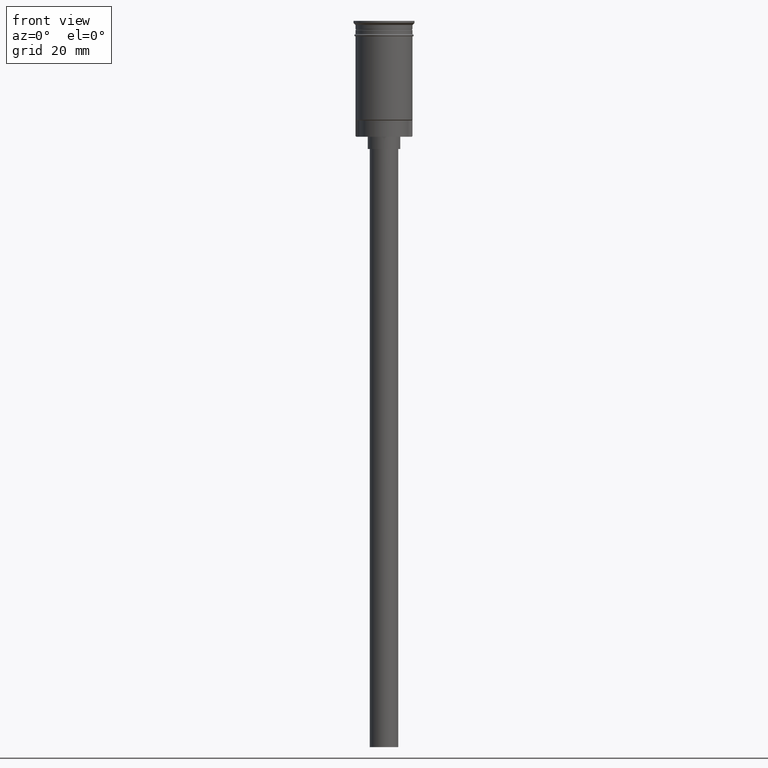
[diagram: clean part render]
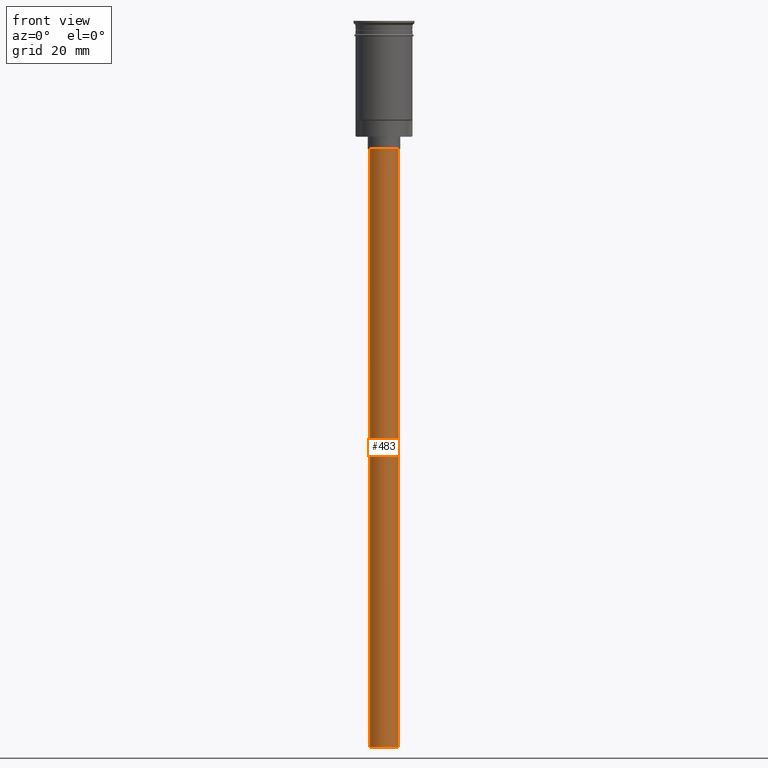
[diagram: same view with one face highlighted and labeled with its STEP entity id]
A machine part, front view. The second image highlights one B-rep face of the part: STEP entity #483.
In plain terms, the highlighted cylindrical surface (edge-blend (fillet) strip) has radius 3.5 mm, axis along (-0, -0, 1).
Its self-contained STEP definition (entity closure, byte-faithful):
#4 = EDGE_LOOP ( 'NONE', ( #576, #382, #1413, #651 ) ) ;
#30 = LINE ( 'NONE', #1141, #63 ) ;
#63 = VECTOR ( 'NONE', #903, 1000.000000000000000 ) ;
#123 = VERTEX_POINT ( 'NONE', #514 ) ;
#230 = EDGE_CURVE ( 'NONE', #123, #631, #30, .T. ) ;
#342 = CIRCLE ( 'NONE', #1262, 3.500000000000000444 ) ;
#379 = DIRECTION ( 'NONE',  ( -1.000000000000000000, 0.000000000000000000, 0.000000000000000000 ) ) ;
#382 = ORIENTED_EDGE ( 'NONE', *, *, #464, .F. ) ;
#463 = CARTESIAN_POINT ( 'NONE',  ( -3.500000000000000444, 4.286263797015737088E-16, -31.50000000000000000 ) ) ;
#464 = EDGE_CURVE ( 'NONE', #123, #1436, #342, .T. ) ;
#483 = ADVANCED_FACE ( 'NONE', ( #1337 ), #578, .T. ) ;
#514 = CARTESIAN_POINT ( 'NONE',  ( 3.500000000000000444, 0.000000000000000000, -178.5000000000000000 ) ) ;
#531 = VECTOR ( 'NONE', #532, 1000.000000000000000 ) ;
#532 = DIRECTION ( 'NONE',  ( -0.000000000000000000, -0.000000000000000000, 1.000000000000000000 ) ) ;
#576 = ORIENTED_EDGE ( 'NONE', *, *, #1023, .F. ) ;
#578 = CYLINDRICAL_SURFACE ( 'NONE', #1336, 3.500000000000000444 ) ;
#631 = VERTEX_POINT ( 'NONE', #1241 ) ;
#651 = ORIENTED_EDGE ( 'NONE', *, *, #1286, .T. ) ;
#693 = DIRECTION ( 'NONE',  ( 0.000000000000000000, 0.000000000000000000, -1.000000000000000000 ) ) ;
#757 = LINE ( 'NONE', #907, #531 ) ;
#903 = DIRECTION ( 'NONE',  ( -0.000000000000000000, -0.000000000000000000, 1.000000000000000000 ) ) ;
#907 = CARTESIAN_POINT ( 'NONE',  ( -3.500000000000000444, 4.286263797015737088E-16, -178.5000000000000000 ) ) ;
#1023 = EDGE_CURVE ( 'NONE', #1436, #1109, #757, .T. ) ;
#1074 = CARTESIAN_POINT ( 'NONE',  ( 0.000000000000000000, 0.000000000000000000, -178.5000000000000000 ) ) ;
#1078 = AXIS2_PLACEMENT_3D ( 'NONE', #1371, #1499, #379 ) ;
#1088 = DIRECTION ( 'NONE',  ( -0.000000000000000000, -0.000000000000000000, 1.000000000000000000 ) ) ;
#1109 = VERTEX_POINT ( 'NONE', #463 ) ;
#1141 = CARTESIAN_POINT ( 'NONE',  ( 3.500000000000000444, 0.000000000000000000, -178.5000000000000000 ) ) ;
#1241 = CARTESIAN_POINT ( 'NONE',  ( 3.500000000000000444, 0.000000000000000000, -31.50000000000000000 ) ) ;
#1262 = AXIS2_PLACEMENT_3D ( 'NONE', #1312, #693, #1327 ) ;
#1286 = EDGE_CURVE ( 'NONE', #631, #1109, #1496, .T. ) ;
#1312 = CARTESIAN_POINT ( 'NONE',  ( 0.000000000000000000, 0.000000000000000000, -178.5000000000000000 ) ) ;
#1327 = DIRECTION ( 'NONE',  ( -1.000000000000000000, 0.000000000000000000, 0.000000000000000000 ) ) ;
#1336 = AXIS2_PLACEMENT_3D ( 'NONE', #1074, #1088, #1566 ) ;
#1337 = FACE_OUTER_BOUND ( 'NONE', #4, .T. ) ;
#1371 = CARTESIAN_POINT ( 'NONE',  ( 0.000000000000000000, 0.000000000000000000, -31.50000000000000000 ) ) ;
#1413 = ORIENTED_EDGE ( 'NONE', *, *, #230, .T. ) ;
#1436 = VERTEX_POINT ( 'NONE', #1589 ) ;
#1496 = CIRCLE ( 'NONE', #1078, 3.500000000000000444 ) ;
#1499 = DIRECTION ( 'NONE',  ( 0.000000000000000000, 0.000000000000000000, -1.000000000000000000 ) ) ;
#1566 = DIRECTION ( 'NONE',  ( 1.000000000000000000, 0.000000000000000000, 0.000000000000000000 ) ) ;
#1589 = CARTESIAN_POINT ( 'NONE',  ( -3.500000000000000444, 4.286263797015737088E-16, -178.5000000000000000 ) ) ;